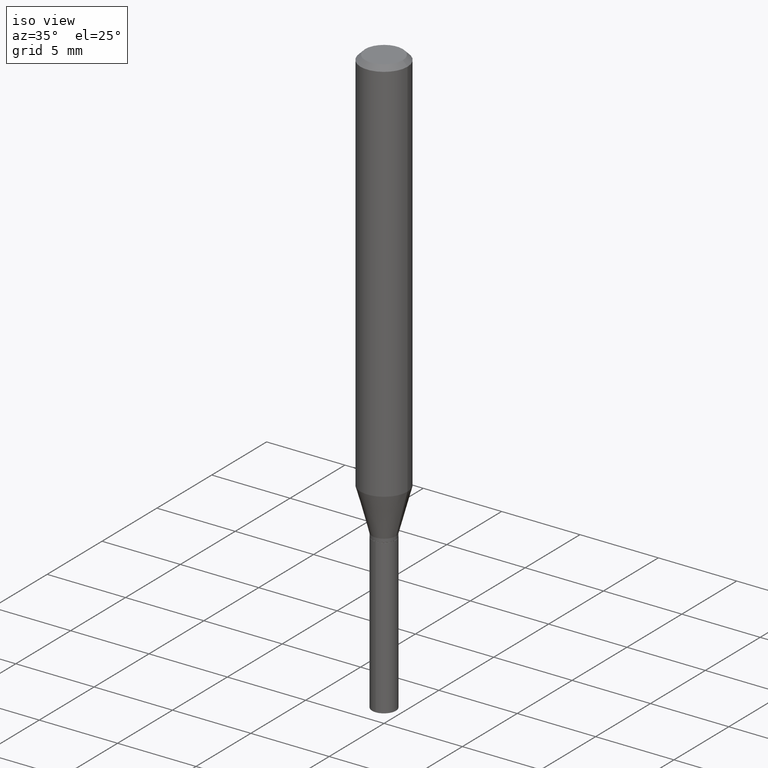
[diagram: clean part render]
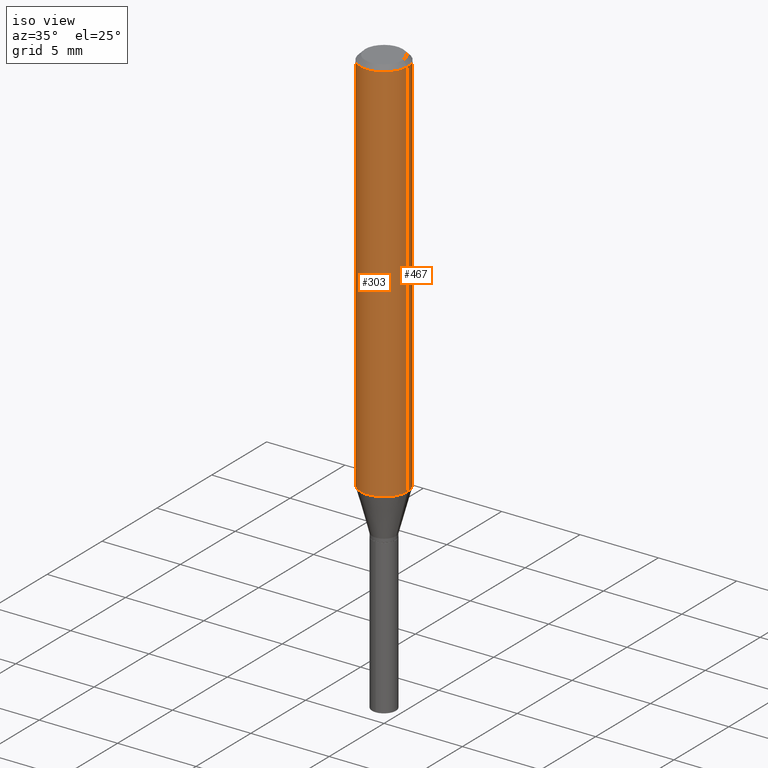
[diagram: same view with one multi-face feature highlighted, each face labeled with its STEP entity id]
A machine part, iso view. The highlighted faces form ONE feature: a constant-radius fillet chain: 2 tangent blend faces with common blend radius 1.4999 mm. The faces share edges in the B-rep.
Their STEP definitions:
[1] entity #467 (Cylinder):
#22 = EDGE_LOOP ( 'NONE', ( #356, #309, #237, #404 ) ) ;
#40 = LINE ( 'NONE', #197, #305 ) ;
#63 = CIRCLE ( 'NONE', #219, 0.05904999999999999832 ) ;
#81 = DIRECTION ( 'NONE',  ( 1.000000000000000000, -6.982962677686266711E-15, 0.000000000000000000 ) ) ;
#82 = CARTESIAN_POINT ( 'NONE',  ( -0.05905000000000011628, -2.990591763228361215E-15, -0.9767107189593668970 ) ) ;
#85 = CYLINDRICAL_SURFACE ( 'NONE', #373, 0.05905000000000006077 ) ;
#87 = CARTESIAN_POINT ( 'NONE',  ( 2.888098660104664204E-31, -4.123439461173780263E-17, -0.01181000000000007218 ) ) ;
#89 = CARTESIAN_POINT ( 'NONE',  ( -0.05904999999999999832, -1.306125336186879331E-15, -0.01181000000000007218 ) ) ;
#107 = LINE ( 'NONE', #459, #289 ) ;
#111 = EDGE_CURVE ( 'NONE', #293, #446, #123, .T. ) ;
#123 = CIRCLE ( 'NONE', #288, 0.05905000000000011628 ) ;
#126 = CARTESIAN_POINT ( 'NONE',  ( 2.388515595881789392E-29, -3.410167248694701497E-15, -0.9767107189593668970 ) ) ;
#127 = DIRECTION ( 'NONE',  ( 1.000000000000000000, -6.982962677686266711E-15, 4.876176775795935793E-29 ) ) ;
#137 = DIRECTION ( 'NONE',  ( -2.445468806185136877E-29, 3.491481338843145188E-15, 1.000000000000000000 ) ) ;
#140 = VERTEX_POINT ( 'NONE', #89 ) ;
#194 = EDGE_CURVE ( 'NONE', #293, #204, #40, .T. ) ;
#197 = CARTESIAN_POINT ( 'NONE',  ( 0.05905000000000006077, -4.123439461173744764E-16, 2.879382386107503023E-30 ) ) ;
#204 = VERTEX_POINT ( 'NONE', #341 ) ;
#214 = CARTESIAN_POINT ( 'NONE',  ( 0.05905000000000011628, -3.822511194812076417E-15, -0.9767107189593668970 ) ) ;
#219 = AXIS2_PLACEMENT_3D ( 'NONE', #87, #301, #272 ) ;
#237 = ORIENTED_EDGE ( 'NONE', *, *, #474, .F. ) ;
#263 = CARTESIAN_POINT ( 'NONE',  ( 0.000000000000000000, 0.000000000000000000, 0.000000000000000000 ) ) ;
#272 = DIRECTION ( 'NONE',  ( 1.000000000000000000, -6.982962677686266711E-15, 0.000000000000000000 ) ) ;
#288 = AXIS2_PLACEMENT_3D ( 'NONE', #126, #430, #81 ) ;
#289 = VECTOR ( 'NONE', #418, 39.37007874015748143 ) ;
#293 = VERTEX_POINT ( 'NONE', #214 ) ;
#301 = DIRECTION ( 'NONE',  ( -2.445468806185136597E-29, 3.491481338843145583E-15, 1.000000000000000000 ) ) ;
#305 = VECTOR ( 'NONE', #137, 39.37007874015748143 ) ;
#309 = ORIENTED_EDGE ( 'NONE', *, *, #426, .T. ) ;
#341 = CARTESIAN_POINT ( 'NONE',  ( 0.05904999999999999832, -4.535783407291118600E-16, -0.01181000000000007218 ) ) ;
#356 = ORIENTED_EDGE ( 'NONE', *, *, #111, .T. ) ;
#373 = AXIS2_PLACEMENT_3D ( 'NONE', #263, #379, #127 ) ;
#379 = DIRECTION ( 'NONE',  ( -2.445468806185136597E-29, 3.491481338843145583E-15, 1.000000000000000000 ) ) ;
#404 = ORIENTED_EDGE ( 'NONE', *, *, #194, .F. ) ;
#418 = DIRECTION ( 'NONE',  ( -2.445468806185136877E-29, 3.491481338843145188E-15, 1.000000000000000000 ) ) ;
#426 = EDGE_CURVE ( 'NONE', #446, #140, #107, .T. ) ;
#430 = DIRECTION ( 'NONE',  ( -2.445468806185136597E-29, 3.491481338843145583E-15, 1.000000000000000000 ) ) ;
#446 = VERTEX_POINT ( 'NONE', #82 ) ;
#455 = FACE_OUTER_BOUND ( 'NONE', #22, .T. ) ;
#459 = CARTESIAN_POINT ( 'NONE',  ( -0.05905000000000006077, 4.195754854663395916E-16, -2.904631170795524694E-30 ) ) ;
#467 = ADVANCED_FACE ( 'NONE', ( #455 ), #85, .T. ) ;
#474 = EDGE_CURVE ( 'NONE', #204, #140, #63, .T. ) ;
[2] entity #303 (Cylinder):
#16 = CIRCLE ( 'NONE', #231, 0.05904999999999999832 ) ;
#19 = FACE_OUTER_BOUND ( 'NONE', #222, .T. ) ;
#30 = AXIS2_PLACEMENT_3D ( 'NONE', #266, #452, #316 ) ;
#40 = LINE ( 'NONE', #197, #305 ) ;
#54 = ORIENTED_EDGE ( 'NONE', *, *, #194, .T. ) ;
#56 = CIRCLE ( 'NONE', #30, 0.05905000000000011628 ) ;
#82 = CARTESIAN_POINT ( 'NONE',  ( -0.05905000000000011628, -2.990591763228361215E-15, -0.9767107189593668970 ) ) ;
#89 = CARTESIAN_POINT ( 'NONE',  ( -0.05904999999999999832, -1.306125336186879331E-15, -0.01181000000000007218 ) ) ;
#101 = DIRECTION ( 'NONE',  ( 1.000000000000000000, -6.982962677686266711E-15, 4.876176775795935793E-29 ) ) ;
#107 = LINE ( 'NONE', #459, #289 ) ;
#137 = DIRECTION ( 'NONE',  ( -2.445468806185136877E-29, 3.491481338843145188E-15, 1.000000000000000000 ) ) ;
#140 = VERTEX_POINT ( 'NONE', #89 ) ;
#146 = AXIS2_PLACEMENT_3D ( 'NONE', #286, #148, #101 ) ;
#147 = EDGE_CURVE ( 'NONE', #140, #204, #16, .T. ) ;
#148 = DIRECTION ( 'NONE',  ( -2.445468806185136597E-29, 3.491481338843145583E-15, 1.000000000000000000 ) ) ;
#182 = EDGE_CURVE ( 'NONE', #446, #293, #56, .T. ) ;
#194 = EDGE_CURVE ( 'NONE', #293, #204, #40, .T. ) ;
#197 = CARTESIAN_POINT ( 'NONE',  ( 0.05905000000000006077, -4.123439461173744764E-16, 2.879382386107503023E-30 ) ) ;
#204 = VERTEX_POINT ( 'NONE', #341 ) ;
#214 = CARTESIAN_POINT ( 'NONE',  ( 0.05905000000000011628, -3.822511194812076417E-15, -0.9767107189593668970 ) ) ;
#222 = EDGE_LOOP ( 'NONE', ( #319, #321, #54, #413 ) ) ;
#231 = AXIS2_PLACEMENT_3D ( 'NONE', #351, #271, #397 ) ;
#266 = CARTESIAN_POINT ( 'NONE',  ( 2.388515595881789392E-29, -3.410167248694701497E-15, -0.9767107189593668970 ) ) ;
#271 = DIRECTION ( 'NONE',  ( -2.445468806185136597E-29, 3.491481338843145583E-15, 1.000000000000000000 ) ) ;
#286 = CARTESIAN_POINT ( 'NONE',  ( 0.000000000000000000, 0.000000000000000000, 0.000000000000000000 ) ) ;
#289 = VECTOR ( 'NONE', #418, 39.37007874015748143 ) ;
#293 = VERTEX_POINT ( 'NONE', #214 ) ;
#303 = ADVANCED_FACE ( 'NONE', ( #19 ), #403, .T. ) ;
#305 = VECTOR ( 'NONE', #137, 39.37007874015748143 ) ;
#316 = DIRECTION ( 'NONE',  ( 1.000000000000000000, -6.982962677686266711E-15, 0.000000000000000000 ) ) ;
#319 = ORIENTED_EDGE ( 'NONE', *, *, #426, .F. ) ;
#321 = ORIENTED_EDGE ( 'NONE', *, *, #182, .T. ) ;
#341 = CARTESIAN_POINT ( 'NONE',  ( 0.05904999999999999832, -4.535783407291118600E-16, -0.01181000000000007218 ) ) ;
#351 = CARTESIAN_POINT ( 'NONE',  ( 2.888098660104664204E-31, -4.123439461173780263E-17, -0.01181000000000007218 ) ) ;
#397 = DIRECTION ( 'NONE',  ( 1.000000000000000000, -6.982962677686266711E-15, 0.000000000000000000 ) ) ;
#403 = CYLINDRICAL_SURFACE ( 'NONE', #146, 0.05905000000000006077 ) ;
#413 = ORIENTED_EDGE ( 'NONE', *, *, #147, .F. ) ;
#418 = DIRECTION ( 'NONE',  ( -2.445468806185136877E-29, 3.491481338843145188E-15, 1.000000000000000000 ) ) ;
#426 = EDGE_CURVE ( 'NONE', #446, #140, #107, .T. ) ;
#446 = VERTEX_POINT ( 'NONE', #82 ) ;
#452 = DIRECTION ( 'NONE',  ( -2.445468806185136597E-29, 3.491481338843145583E-15, 1.000000000000000000 ) ) ;
#459 = CARTESIAN_POINT ( 'NONE',  ( -0.05905000000000006077, 4.195754854663395916E-16, -2.904631170795524694E-30 ) ) ;